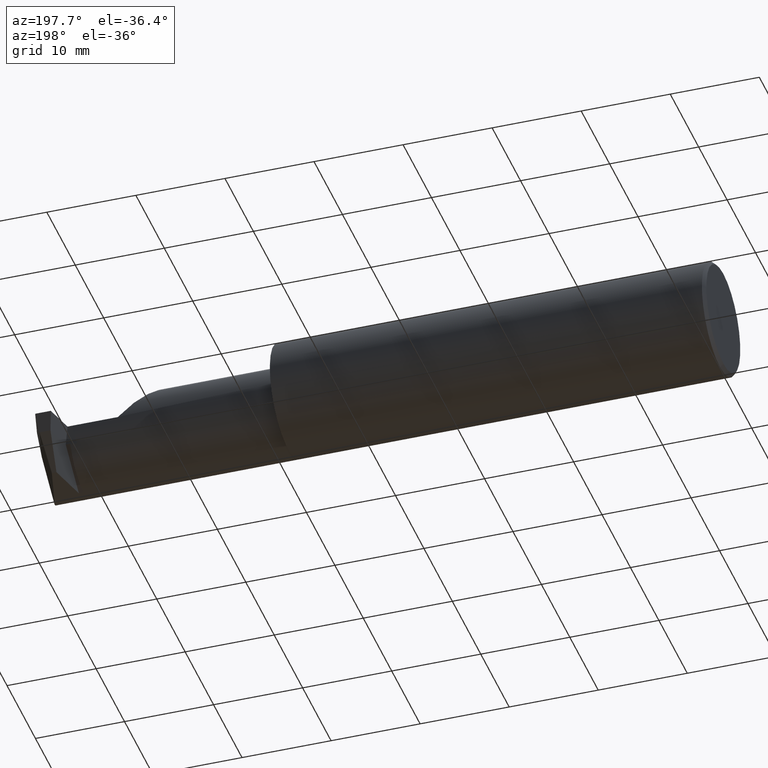
[diagram: clean part render]
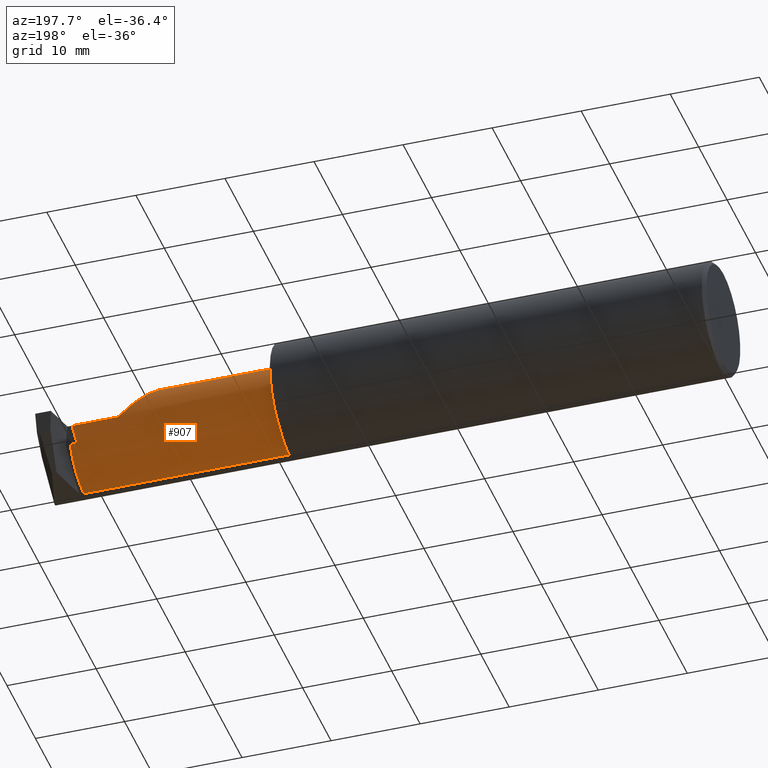
[diagram: same view with one face highlighted and labeled with its STEP entity id]
A machine part, auxiliary view. The second image highlights one B-rep face of the part: STEP entity #907.
In plain terms, the highlighted cylindrical surface (partial cylindrical patch) has radius 5.2578 mm, axis along (-1, -0, -0).
Its self-contained STEP definition (entity closure, byte-faithful):
#9 = VECTOR ( 'NONE', #52, 39.37007874015748143 ) ;
#15 = VECTOR ( 'NONE', #680, 39.37007874015748143 ) ;
#19 = CARTESIAN_POINT ( 'NONE',  ( 1.950000000000000178, -0.09684999999999999165, -0.2070000000000000173 ) ) ;
#21 = EDGE_CURVE ( 'NONE', #840, #251, #521, .T. ) ;
#27 = CARTESIAN_POINT ( 'NONE',  ( 2.856905148354085711, 0.09266310188211818177, -0.08326934739156957588 ) ) ;
#52 = DIRECTION ( 'NONE',  ( -1.000000000000000000, -0.000000000000000000, -0.000000000000000000 ) ) ;
#54 = DIRECTION ( 'NONE',  ( 0.000000000000000000, 0.000000000000000000, 1.000000000000000000 ) ) ;
#81 = DIRECTION ( 'NONE',  ( 1.000000000000000000, 0.000000000000000000, 0.000000000000000000 ) ) ;
#92 = LINE ( 'NONE', #180, #15 ) ;
#102 = DIRECTION ( 'NONE',  ( 0.000000000000000000, 0.000000000000000000, 1.000000000000000000 ) ) ;
#114 = LINE ( 'NONE', #616, #9 ) ;
#119 = DIRECTION ( 'NONE',  ( 0.000000000000000000, 1.814633329124812327E-15, -1.000000000000000000 ) ) ;
#130 = CARTESIAN_POINT ( 'NONE',  ( 1.950000000000000178, -0.09685000000000000553, 0.000000000000000000 ) ) ;
#133 = CARTESIAN_POINT ( 'NONE',  ( 2.826410051084567776, 0.09266310188211814014, -0.08326934739156964527 ) ) ;
#136 = VERTEX_POINT ( 'NONE', #909 ) ;
#144 = EDGE_CURVE ( 'NONE', #136, #337, #114, .T. ) ;
#148 = CARTESIAN_POINT ( 'NONE',  ( 2.859999999999999876, -0.08773859972319995870, -0.2067993771388006996 ) ) ;
#157 = ORIENTED_EDGE ( 'NONE', *, *, #943, .F. ) ;
#163 = CIRCLE ( 'NONE', #692, 0.2070000000000000173 ) ;
#180 = CARTESIAN_POINT ( 'NONE',  ( 1.925000000000000044, 0.09266310188211666909, -0.08326934739157304532 ) ) ;
#181 = VERTEX_POINT ( 'NONE', #326 ) ;
#191 = CARTESIAN_POINT ( 'NONE',  ( 2.856905148354085711, -0.09685000000000000553, 0.000000000000000000 ) ) ;
#199 = CARTESIAN_POINT ( 'NONE',  ( 2.843896949202449953, 0.1101499999999999563, 0.000000000000000000 ) ) ;
#225 = VERTEX_POINT ( 'NONE', #339 ) ;
#228 = LINE ( 'NONE', #585, #444 ) ;
#237 = CARTESIAN_POINT ( 'NONE',  ( 2.843896949202449953, 0.1101499999999999563, 0.000000000000000000 ) ) ;
#251 = VERTEX_POINT ( 'NONE', #469 ) ;
#270 = CARTESIAN_POINT ( 'NONE',  ( 2.434350000000000680, -0.09685000000000000553, 0.2070000000000000173 ) ) ;
#279 = AXIS2_PLACEMENT_3D ( 'NONE', #898, #314, #102 ) ;
#292 = CARTESIAN_POINT ( 'NONE',  ( 2.434350000000000236, 0.02378168701430510151, 0.2070000000000000173 ) ) ;
#314 = DIRECTION ( 'NONE',  ( -1.000000000000000000, -0.000000000000000000, -0.000000000000000000 ) ) ;
#326 = CARTESIAN_POINT ( 'NONE',  ( 2.640000000000000124, 0.1101499999999999702, -6.123031769111885058E-17 ) ) ;
#337 = VERTEX_POINT ( 'NONE', #19 ) ;
#339 = CARTESIAN_POINT ( 'NONE',  ( 1.950000000000000178, -0.09685000000000000553, 0.2070000000000000173 ) ) ;
#355 = CARTESIAN_POINT ( 'NONE',  ( 2.837854847910429967, 0.1101499999999999979, -0.02877135945258273153 ) ) ;
#356 = VERTEX_POINT ( 'NONE', #237 ) ;
#360 = ORIENTED_EDGE ( 'NONE', *, *, #917, .T. ) ;
#364 = EDGE_CURVE ( 'NONE', #840, #814, #92, .T. ) ;
#372 = VECTOR ( 'NONE', #473, 39.37007874015748143 ) ;
#375 = ORIENTED_EDGE ( 'NONE', *, *, #452, .T. ) ;
#402 = DIRECTION ( 'NONE',  ( -1.000000000000000000, -0.000000000000000000, -0.000000000000000000 ) ) ;
#411 = EDGE_LOOP ( 'NONE', ( #375, #629, #360, #920, #157, #856, #679, #647, #595, #683, #672 ) ) ;
#416 = CARTESIAN_POINT ( 'NONE',  ( 1.925000000000000266, -0.09685000000000000553, 0.000000000000000000 ) ) ;
#424 = LINE ( 'NONE', #826, #372 ) ;
#444 = VECTOR ( 'NONE', #81, 39.37007874015748143 ) ;
#447 = DIRECTION ( 'NONE',  ( 0.000000000000000000, 0.000000000000000000, 1.000000000000000000 ) ) ;
#452 = EDGE_CURVE ( 'NONE', #916, #136, #778, .T. ) ;
#462 = EDGE_CURVE ( 'NONE', #181, #356, #424, .T. ) ;
#468 = VERTEX_POINT ( 'NONE', #535 ) ;
#469 = CARTESIAN_POINT ( 'NONE',  ( 2.856905148354085711, -0.08773859972320258160, -0.2067993771388023372 ) ) ;
#473 = DIRECTION ( 'NONE',  ( 1.000000000000000000, 0.000000000000000000, 0.000000000000000000 ) ) ;
#510 =( BOUNDED_CURVE ( )  B_SPLINE_CURVE ( 3, ( #925, #724, #292, #270 ),
 .UNSPECIFIED., .F., .F. ) 
 B_SPLINE_CURVE_WITH_KNOTS ( ( 4, 4 ),
 ( 4.718910765747615699, 6.283185307179586232 ),
 .UNSPECIFIED. ) 
 CURVE ( )  GEOMETRIC_REPRESENTATION_ITEM ( )  RATIONAL_B_SPLINE_CURVE ( ( 1.000000000000000000, 0.8062725446327774215, 0.8062725446327774215, 1.000000000000000000 ) ) 
 REPRESENTATION_ITEM ( '' )  );
#521 = CIRCLE ( 'NONE', #636, 0.2070000000000000173 ) ;
#524 = DIRECTION ( 'NONE',  ( -1.000000000000000000, -0.000000000000000000, -0.000000000000000000 ) ) ;
#527 = EDGE_CURVE ( 'NONE', #627, #225, #639, .T. ) ;
#535 = CARTESIAN_POINT ( 'NONE',  ( 2.640000000000000124, 0.1101455977792765439, 0.001349999999999153743 ) ) ;
#585 = CARTESIAN_POINT ( 'NONE',  ( 1.925000000000000266, -0.08773859972320162404, -0.2067993771388007551 ) ) ;
#595 = ORIENTED_EDGE ( 'NONE', *, *, #364, .F. ) ;
#616 = CARTESIAN_POINT ( 'NONE',  ( 1.925000000000000266, -0.09684999999999999165, -0.2070000000000000173 ) ) ;
#627 = VERTEX_POINT ( 'NONE', #792 ) ;
#629 = ORIENTED_EDGE ( 'NONE', *, *, #144, .T. ) ;
#636 = AXIS2_PLACEMENT_3D ( 'NONE', #191, #402, #119 ) ;
#639 = LINE ( 'NONE', #711, #684 ) ;
#647 = ORIENTED_EDGE ( 'NONE', *, *, #869, .F. ) ;
#672 = ORIENTED_EDGE ( 'NONE', *, *, #725, .T. ) ;
#679 = ORIENTED_EDGE ( 'NONE', *, *, #462, .T. ) ;
#680 = DIRECTION ( 'NONE',  ( -1.000000000000000000, -0.000000000000000000, -0.000000000000000000 ) ) ;
#682 = EDGE_CURVE ( 'NONE', #468, #181, #758, .T. ) ;
#683 = ORIENTED_EDGE ( 'NONE', *, *, #21, .T. ) ;
#684 = VECTOR ( 'NONE', #802, 39.37007874015748143 ) ;
#692 = AXIS2_PLACEMENT_3D ( 'NONE', #130, #796, #801 ) ;
#703 = DIRECTION ( 'NONE',  ( -1.000000000000000000, -0.000000000000000000, -0.000000000000000000 ) ) ;
#711 = CARTESIAN_POINT ( 'NONE',  ( 1.925000000000000266, -0.09685000000000000553, 0.2070000000000000173 ) ) ;
#713 = CARTESIAN_POINT ( 'NONE',  ( 2.831941729141266073, 0.1042368812308372000, -0.05692852818758709771 ) ) ;
#718 = CARTESIAN_POINT ( 'NONE',  ( 2.640000000000000124, -0.09685000000000000553, 0.000000000000000000 ) ) ;
#724 = CARTESIAN_POINT ( 'NONE',  ( 2.519370878431649974, 0.1093588693857053817, 0.1219791215683502378 ) ) ;
#725 = EDGE_CURVE ( 'NONE', #251, #916, #228, .T. ) ;
#757 = CARTESIAN_POINT ( 'NONE',  ( 2.826410051084567776, 0.09266310188211814014, -0.08326934739156964527 ) ) ;
#758 = CIRCLE ( 'NONE', #770, 0.2070000000000000173 ) ;
#770 = AXIS2_PLACEMENT_3D ( 'NONE', #718, #524, #447 ) ;
#774 = CYLINDRICAL_SURFACE ( 'NONE', #862, 0.2070000000000000173 ) ;
#778 = CIRCLE ( 'NONE', #279, 0.2070000000000000173 ) ;
#792 = CARTESIAN_POINT ( 'NONE',  ( 2.434350000000000680, -0.09685000000000000553, 0.2070000000000000173 ) ) ;
#796 = DIRECTION ( 'NONE',  ( 1.000000000000000000, 0.000000000000000000, 0.000000000000000000 ) ) ;
#801 = DIRECTION ( 'NONE',  ( 0.000000000000000000, 0.000000000000000000, -1.000000000000000000 ) ) ;
#802 = DIRECTION ( 'NONE',  ( -1.000000000000000000, -0.000000000000000000, -0.000000000000000000 ) ) ;
#814 = VERTEX_POINT ( 'NONE', #133 ) ;
#826 = CARTESIAN_POINT ( 'NONE',  ( 1.925000000000000266, 0.1101499999999999979, -6.123031769111886291E-17 ) ) ;
#840 = VERTEX_POINT ( 'NONE', #27 ) ;
#855 = FACE_OUTER_BOUND ( 'NONE', #411, .T. ) ;
#856 = ORIENTED_EDGE ( 'NONE', *, *, #682, .T. ) ;
#862 = AXIS2_PLACEMENT_3D ( 'NONE', #416, #703, #54 ) ;
#869 = EDGE_CURVE ( 'NONE', #814, #356, #926, .T. ) ;
#898 = CARTESIAN_POINT ( 'NONE',  ( 2.859999999999999876, -0.09685000000000000553, 0.000000000000000000 ) ) ;
#907 = ADVANCED_FACE ( 'NONE', ( #855 ), #774, .T. ) ;
#909 = CARTESIAN_POINT ( 'NONE',  ( 2.859999999999999876, -0.09685000000000001941, -0.2069999999999999341 ) ) ;
#916 = VERTEX_POINT ( 'NONE', #148 ) ;
#917 = EDGE_CURVE ( 'NONE', #337, #225, #163, .T. ) ;
#920 = ORIENTED_EDGE ( 'NONE', *, *, #527, .F. ) ;
#925 = CARTESIAN_POINT ( 'NONE',  ( 2.640000000000000124, 0.1101455977792765439, 0.001349999999999153743 ) ) ;
#926 =( BOUNDED_CURVE ( )  B_SPLINE_CURVE ( 3, ( #757, #713, #355, #199 ),
 .UNSPECIFIED., .F., .F. ) 
 B_SPLINE_CURVE_WITH_KNOTS ( ( 4, 4 ),
 ( 1.156804228221824715, 1.570796326794882569 ),
 .UNSPECIFIED. ) 
 CURVE ( )  GEOMETRIC_REPRESENTATION_ITEM ( )  RATIONAL_B_SPLINE_CURVE ( ( 1.000000000000000000, 0.9857684695413670983, 0.9857684695413670983, 1.000000000000000000 ) ) 
 REPRESENTATION_ITEM ( '' )  );
#943 = EDGE_CURVE ( 'NONE', #468, #627, #510, .T. ) ;